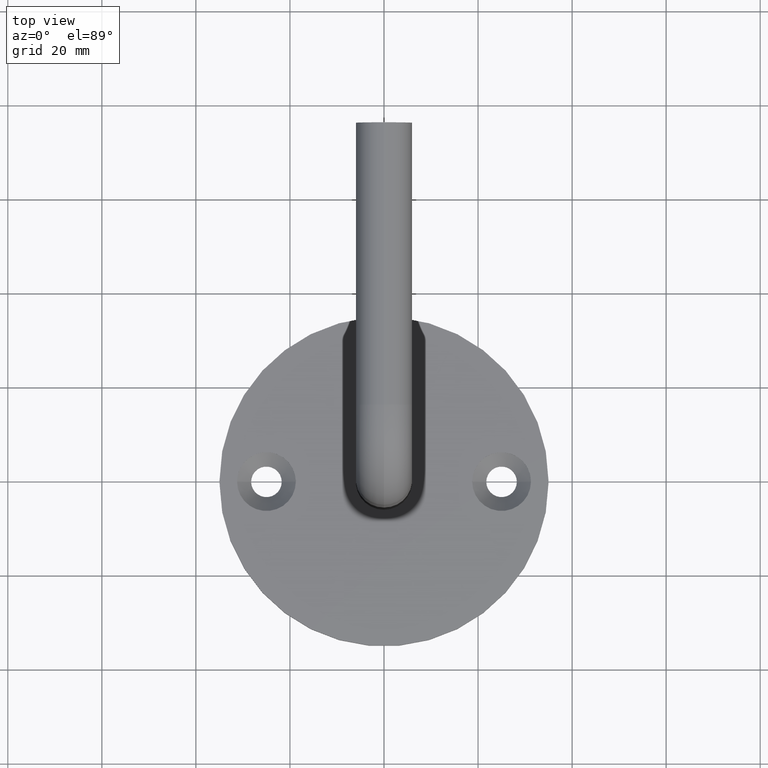
[diagram: clean part render]
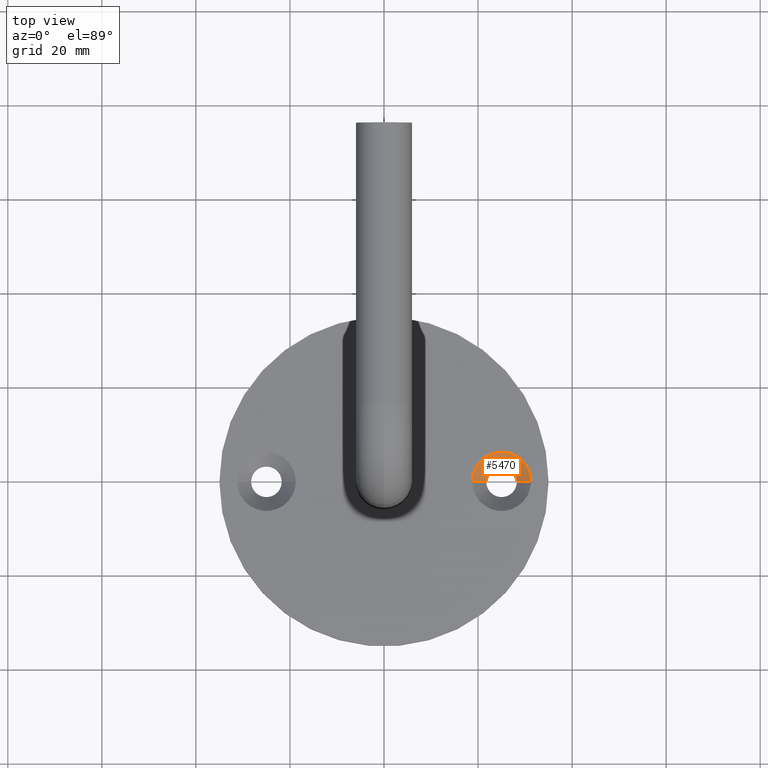
[diagram: same view with one face highlighted and labeled with its STEP entity id]
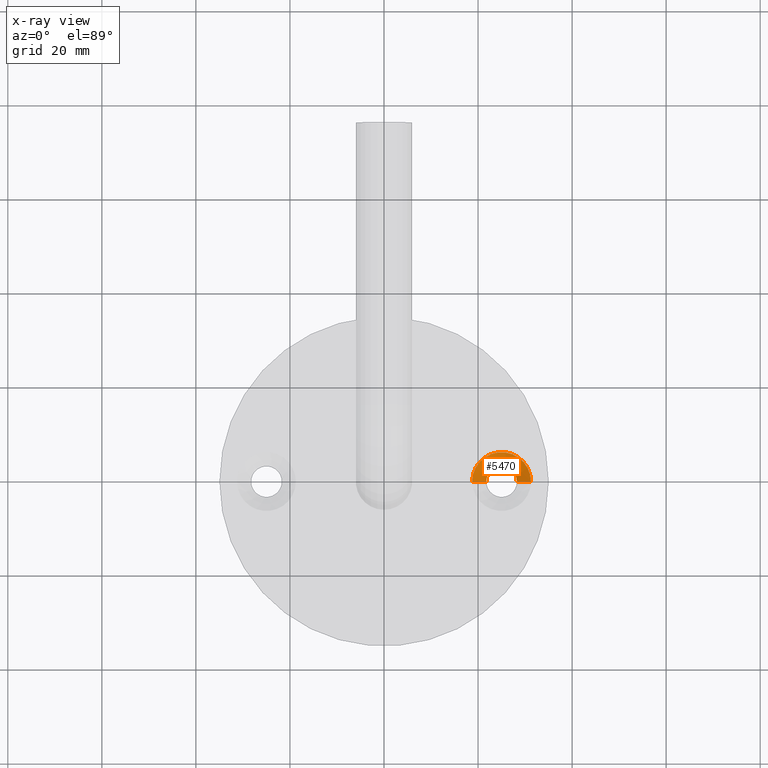
[diagram: x-ray of the same camera — body ghosted, the highlighted face saturated]
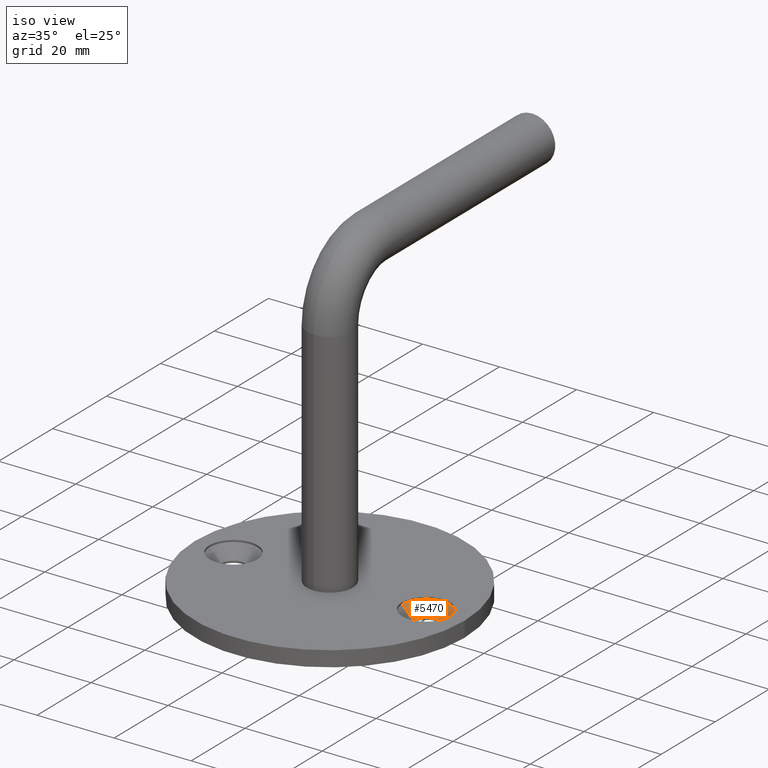
[diagram: same view with one face highlighted and labeled with its STEP entity id]
A machine part, top view. The second image highlights one B-rep face of the part: STEP entity #5470.
The next image is the same camera in x-ray: the body ghosted, the highlighted face saturated — about 0% of this face is hidden behind the body in this view.
A second angle (iso view) of the same face is appended — the face is thin or edge-on in the first view.
In plain terms, the highlighted conical surface has half-angle 45 deg.
Its self-contained STEP definition (entity closure, byte-faithful):
#357 = ORIENTED_EDGE ( 'NONE', *, *, #14407, .F. ) ;
#1301 = CIRCLE ( 'NONE', #2578, 3.249999999999999556 ) ;
#1745 = LINE ( 'NONE', #18238, #11509 ) ;
#2511 = VERTEX_POINT ( 'NONE', #5966 ) ;
#2578 = AXIS2_PLACEMENT_3D ( 'NONE', #4014, #5185, #5246 ) ;
#2827 = ORIENTED_EDGE ( 'NONE', *, *, #6935, .T. ) ;
#4014 = CARTESIAN_POINT ( 'NONE',  ( 25.00000000000000000, 0.000000000000000000, 0.5000000000000008882 ) ) ;
#5185 = DIRECTION ( 'NONE',  ( -0.000000000000000000, -0.000000000000000000, 1.000000000000000000 ) ) ;
#5246 = DIRECTION ( 'NONE',  ( 1.000000000000000000, 0.000000000000000000, 0.000000000000000000 ) ) ;
#5437 = ORIENTED_EDGE ( 'NONE', *, *, #10605, .T. ) ;
#5470 = ADVANCED_FACE ( 'NONE', ( #16187 ), #9312, .F. ) ;
#5966 = CARTESIAN_POINT ( 'NONE',  ( 21.75000000000000355, 3.980102097228897245E-16, 0.5000000000000008882 ) ) ;
#6397 = CIRCLE ( 'NONE', #8406, 6.249999999999998224 ) ;
#6699 = EDGE_CURVE ( 'NONE', #2511, #17581, #14846, .T. ) ;
#6935 = EDGE_CURVE ( 'NONE', #10930, #17581, #6397, .T. ) ;
#7711 = DIRECTION ( 'NONE',  ( 1.000000000000000000, 0.000000000000000000, 0.000000000000000000 ) ) ;
#8406 = AXIS2_PLACEMENT_3D ( 'NONE', #10629, #14717, #7711 ) ;
#8816 = VECTOR ( 'NONE', #16743, 1000.000000000000000 ) ;
#9312 = CONICAL_SURFACE ( 'NONE', #16742, 6.249999999999998224, 0.7853981633974482790 ) ;
#9618 = ORIENTED_EDGE ( 'NONE', *, *, #6699, .F. ) ;
#10605 = EDGE_CURVE ( 'NONE', #14731, #10930, #1745, .T. ) ;
#10629 = CARTESIAN_POINT ( 'NONE',  ( 25.00000000000000000, 0.000000000000000000, 3.500000000000000000 ) ) ;
#10930 = VERTEX_POINT ( 'NONE', #17084 ) ;
#11038 = CARTESIAN_POINT ( 'NONE',  ( 28.25000000000000000, 0.000000000000000000, 0.5000000000000008882 ) ) ;
#11509 = VECTOR ( 'NONE', #13773, 1000.000000000000000 ) ;
#11650 = CARTESIAN_POINT ( 'NONE',  ( 18.75000000000000355, 7.654042494670955634E-16, 3.500000000000000000 ) ) ;
#13053 = CARTESIAN_POINT ( 'NONE',  ( 25.00000000000000000, 0.000000000000000000, 3.500000000000000000 ) ) ;
#13173 = DIRECTION ( 'NONE',  ( 1.000000000000000000, 0.000000000000000000, 0.000000000000000000 ) ) ;
#13773 = DIRECTION ( 'NONE',  ( 0.7071067811865474617, 0.000000000000000000, 0.7071067811865475727 ) ) ;
#14407 = EDGE_CURVE ( 'NONE', #14731, #2511, #1301, .T. ) ;
#14717 = DIRECTION ( 'NONE',  ( -0.000000000000000000, -0.000000000000000000, 1.000000000000000000 ) ) ;
#14731 = VERTEX_POINT ( 'NONE', #11038 ) ;
#14846 = LINE ( 'NONE', #16809, #8816 ) ;
#16187 = FACE_OUTER_BOUND ( 'NONE', #17579, .T. ) ;
#16742 = AXIS2_PLACEMENT_3D ( 'NONE', #13053, #17392, #13173 ) ;
#16743 = DIRECTION ( 'NONE',  ( -0.7071067811865474617, 8.659560562354931626E-17, 0.7071067811865475727 ) ) ;
#16809 = CARTESIAN_POINT ( 'NONE',  ( 18.75000000000000355, 7.654042494670955634E-16, 3.500000000000000000 ) ) ;
#17084 = CARTESIAN_POINT ( 'NONE',  ( 31.25000000000000000, 0.000000000000000000, 3.500000000000000000 ) ) ;
#17392 = DIRECTION ( 'NONE',  ( -0.000000000000000000, -0.000000000000000000, 1.000000000000000000 ) ) ;
#17579 = EDGE_LOOP ( 'NONE', ( #9618, #357, #5437, #2827 ) ) ;
#17581 = VERTEX_POINT ( 'NONE', #11650 ) ;
#18238 = CARTESIAN_POINT ( 'NONE',  ( 31.25000000000000000, 0.000000000000000000, 3.500000000000000000 ) ) ;